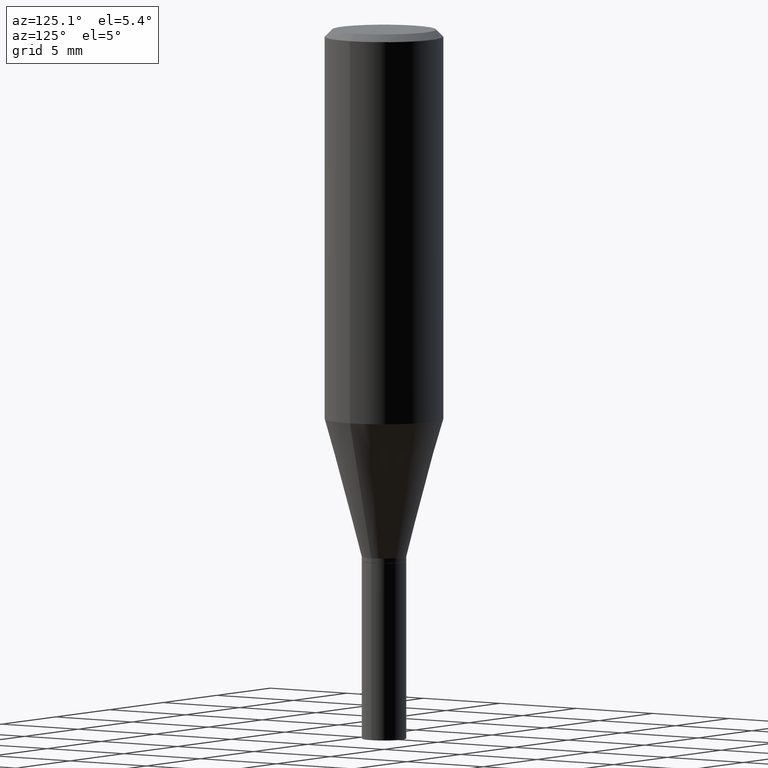
[diagram: clean part render]
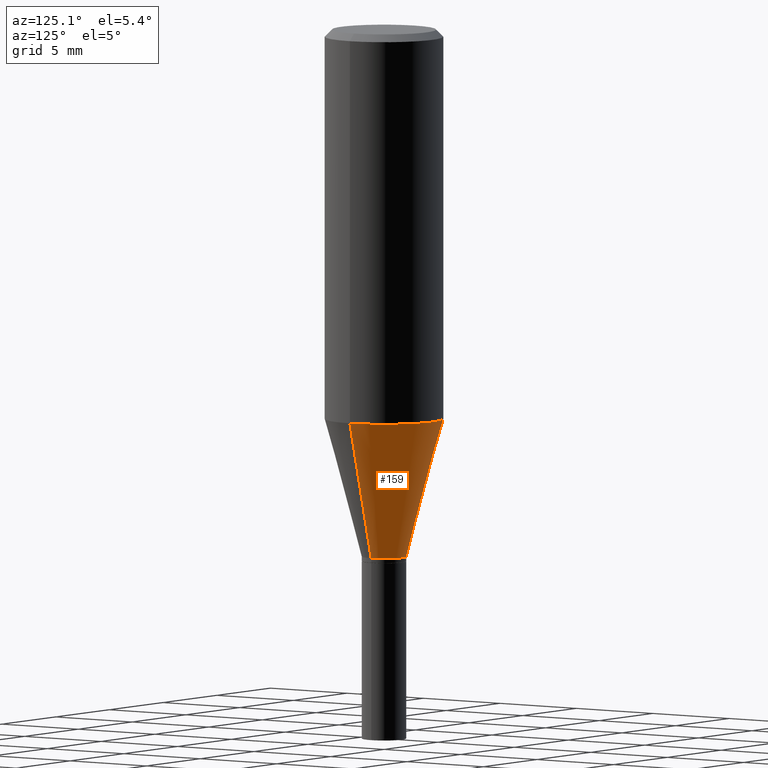
[diagram: same view with one face highlighted and labeled with its STEP entity id]
A machine part, auxiliary view. The second image highlights one B-rep face of the part: STEP entity #159.
In plain terms, the highlighted conical surface has half-angle 15 deg.
Its self-contained STEP definition (entity closure, byte-faithful):
#4 = CARTESIAN_POINT ( 'NONE',  ( -0.1249999999999999861, -1.987150146016147440E-15, -0.8235268319288721051 ) ) ;
#5 = CIRCLE ( 'NONE', #179, 0.1250000000000000000 ) ;
#14 = VERTEX_POINT ( 'NONE', #205 ) ;
#18 = CARTESIAN_POINT ( 'NONE',  ( 0.1249999999999999861, -3.748198900427056011E-15, -0.8235268319288721051 ) ) ;
#32 = DIRECTION ( 'NONE',  ( -0.2588190451025215166, 5.211531920934551042E-15, 0.9659258262890679791 ) ) ;
#38 = ORIENTED_EDGE ( 'NONE', *, *, #375, .T. ) ;
#52 = DIRECTION ( 'NONE',  ( -2.445468806185136597E-29, 3.491481338843145583E-15, 1.000000000000000000 ) ) ;
#58 = LINE ( 'NONE', #385, #360 ) ;
#79 = VERTEX_POINT ( 'NONE', #4 ) ;
#85 = ORIENTED_EDGE ( 'NONE', *, *, #354, .F. ) ;
#100 = CARTESIAN_POINT ( 'NONE',  ( 0.04690000000000005276, -4.220502642393594266E-15, -1.115000000000000213 ) ) ;
#106 = CONICAL_SURFACE ( 'NONE', #425, 0.04690000000000005276, 0.2617993877991502405 ) ;
#125 = CARTESIAN_POINT ( 'NONE',  ( 2.013909178538526665E-29, -2.875328565716272672E-15, -0.8235268319288721051 ) ) ;
#127 = DIRECTION ( 'NONE',  ( 1.000000000000000000, -6.982962677686269077E-15, 0.000000000000000000 ) ) ;
#159 = ADVANCED_FACE ( 'NONE', ( #437 ), #106, .T. ) ;
#173 = VERTEX_POINT ( 'NONE', #324 ) ;
#176 = ORIENTED_EDGE ( 'NONE', *, *, #406, .T. ) ;
#179 = AXIS2_PLACEMENT_3D ( 'NONE', #125, #52, #377 ) ;
#204 = VECTOR ( 'NONE', #240, 39.37007874015748143 ) ;
#205 = CARTESIAN_POINT ( 'NONE',  ( -0.04690000000000005276, -2.773453647877384221E-15, -1.115000000000000213 ) ) ;
#215 = VERTEX_POINT ( 'NONE', #18 ) ;
#230 = DIRECTION ( 'NONE',  ( -2.445468806185136597E-29, 3.491481338843145583E-15, 1.000000000000000000 ) ) ;
#240 = DIRECTION ( 'NONE',  ( 0.2588190451025215166, 1.565188264969620784E-15, 0.9659258262890679791 ) ) ;
#241 = ORIENTED_EDGE ( 'NONE', *, *, #262, .F. ) ;
#248 = CIRCLE ( 'NONE', #369, 0.04690000000000005276 ) ;
#262 = EDGE_CURVE ( 'NONE', #215, #79, #5, .T. ) ;
#265 = CARTESIAN_POINT ( 'NONE',  ( 2.726697718896427687E-29, -3.893001692810108364E-15, -1.115000000000000213 ) ) ;
#268 = DIRECTION ( 'NONE',  ( 1.000000000000000000, -6.982962677686269077E-15, 0.000000000000000000 ) ) ;
#271 = CARTESIAN_POINT ( 'NONE',  ( 2.726697718896427687E-29, -3.893001692810108364E-15, -1.115000000000000213 ) ) ;
#324 = CARTESIAN_POINT ( 'NONE',  ( 0.04690000000000005276, -4.220502642393594266E-15, -1.115000000000000213 ) ) ;
#351 = LINE ( 'NONE', #100, #204 ) ;
#354 = EDGE_CURVE ( 'NONE', #173, #215, #351, .T. ) ;
#360 = VECTOR ( 'NONE', #32, 39.37007874015748143 ) ;
#369 = AXIS2_PLACEMENT_3D ( 'NONE', #271, #456, #268 ) ;
#375 = EDGE_CURVE ( 'NONE', #173, #14, #248, .T. ) ;
#377 = DIRECTION ( 'NONE',  ( 1.000000000000000000, -6.982962677686266711E-15, 0.000000000000000000 ) ) ;
#385 = CARTESIAN_POINT ( 'NONE',  ( -0.04690000000000005276, -3.559757149738621002E-15, -1.115000000000000213 ) ) ;
#391 = EDGE_LOOP ( 'NONE', ( #38, #176, #241, #85 ) ) ;
#406 = EDGE_CURVE ( 'NONE', #14, #79, #58, .T. ) ;
#425 = AXIS2_PLACEMENT_3D ( 'NONE', #265, #230, #127 ) ;
#437 = FACE_OUTER_BOUND ( 'NONE', #391, .T. ) ;
#456 = DIRECTION ( 'NONE',  ( -2.445468806185136597E-29, 3.491481338843145583E-15, 1.000000000000000000 ) ) ;